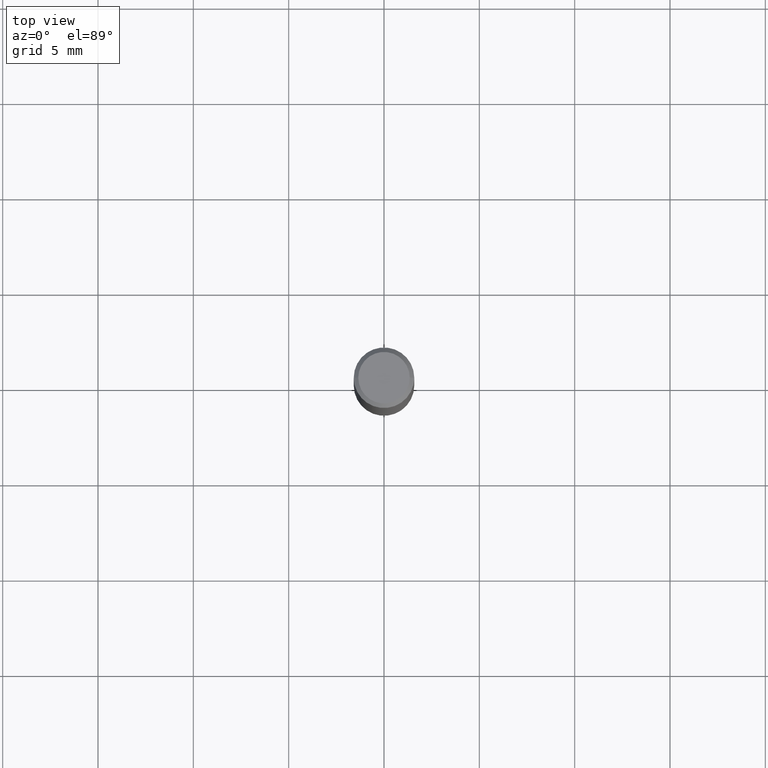
[diagram: clean part render]
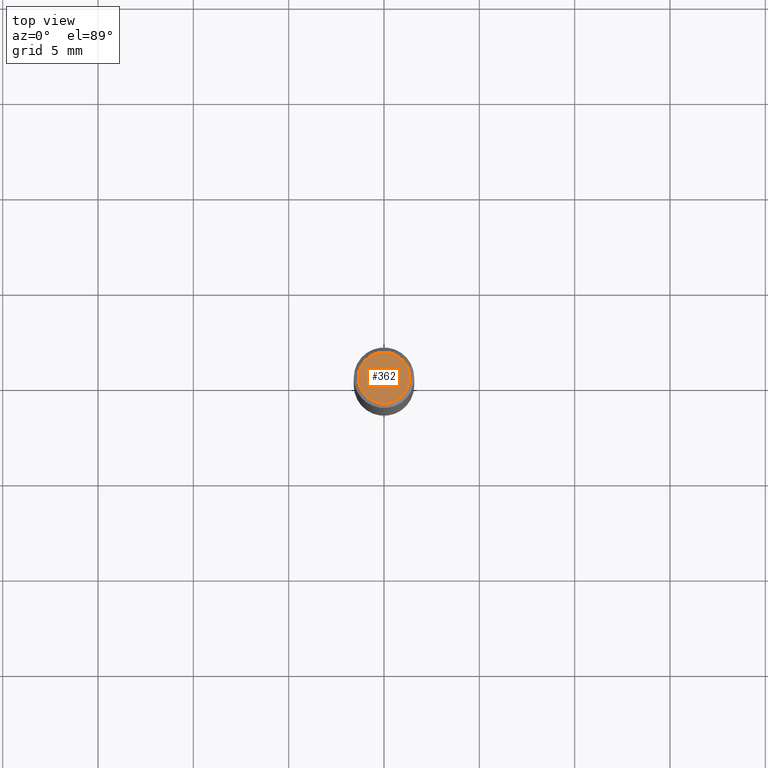
[diagram: same view with one face highlighted and labeled with its STEP entity id]
A machine part, top view. The second image highlights one B-rep face of the part: STEP entity #362.
In plain terms, the highlighted planar face has unit normal (0, -0, -1).
Its self-contained STEP definition (entity closure, byte-faithful):
#10 = CARTESIAN_POINT ( 'NONE',  ( 1.415359278996747967E-46, -2.020757941330909984E-32, -5.787680772770392401E-18 ) ) ;
#52 = EDGE_CURVE ( 'NONE', #585, #342, #540, .T. ) ;
#84 = FACE_OUTER_BOUND ( 'NONE', #538, .T. ) ;
#148 = CIRCLE ( 'NONE', #472, 0.05312499999999999861 ) ;
#178 = CARTESIAN_POINT ( 'NONE',  ( 7.076796394983739835E-47, -1.010378970665454992E-32, -2.893840386385196200E-18 ) ) ;
#209 = EDGE_CURVE ( 'NONE', #342, #585, #148, .T. ) ;
#225 = DIRECTION ( 'NONE',  ( -1.000000000000000000, 6.982962677686265922E-15, -4.876176775795935793E-29 ) ) ;
#260 = AXIS2_PLACEMENT_3D ( 'NONE', #178, #410, #225 ) ;
#278 = CARTESIAN_POINT ( 'NONE',  ( 1.415359278996747967E-46, -2.020757941330909984E-32, -5.787680772770392401E-18 ) ) ;
#280 = DIRECTION ( 'NONE',  ( -2.445468806185136597E-29, 3.491481338843145583E-15, 1.000000000000000000 ) ) ;
#294 = AXIS2_PLACEMENT_3D ( 'NONE', #278, #280, #548 ) ;
#300 = ORIENTED_EDGE ( 'NONE', *, *, #209, .T. ) ;
#342 = VERTEX_POINT ( 'NONE', #382 ) ;
#362 = ADVANCED_FACE ( 'NONE', ( #84 ), #448, .F. ) ;
#379 = DIRECTION ( 'NONE',  ( -2.445468806185136597E-29, 3.491481338843145583E-15, 1.000000000000000000 ) ) ;
#382 = CARTESIAN_POINT ( 'NONE',  ( 0.05312499999999999861, -4.129888592719939842E-16, -5.787680772767651417E-18 ) ) ;
#410 = DIRECTION ( 'NONE',  ( 2.438088387897960049E-29, -3.491481338843145188E-15, -1.000000000000000000 ) ) ;
#448 = PLANE ( 'NONE',  #260 ) ;
#472 = AXIS2_PLACEMENT_3D ( 'NONE', #10, #379, #549 ) ;
#535 = ORIENTED_EDGE ( 'NONE', *, *, #52, .T. ) ;
#538 = EDGE_LOOP ( 'NONE', ( #535, #300 ) ) ;
#540 = CIRCLE ( 'NONE', #294, 0.05312499999999999861 ) ;
#548 = DIRECTION ( 'NONE',  ( 1.000000000000000000, -6.982962677686266711E-15, 4.875930095424100059E-29 ) ) ;
#549 = DIRECTION ( 'NONE',  ( 1.000000000000000000, -6.982962677686266711E-15, 4.875930095424100059E-29 ) ) ;
#563 = CARTESIAN_POINT ( 'NONE',  ( -0.05312499999999999861, 3.873362110279099094E-16, -5.787680772773044021E-18 ) ) ;
#585 = VERTEX_POINT ( 'NONE', #563 ) ;